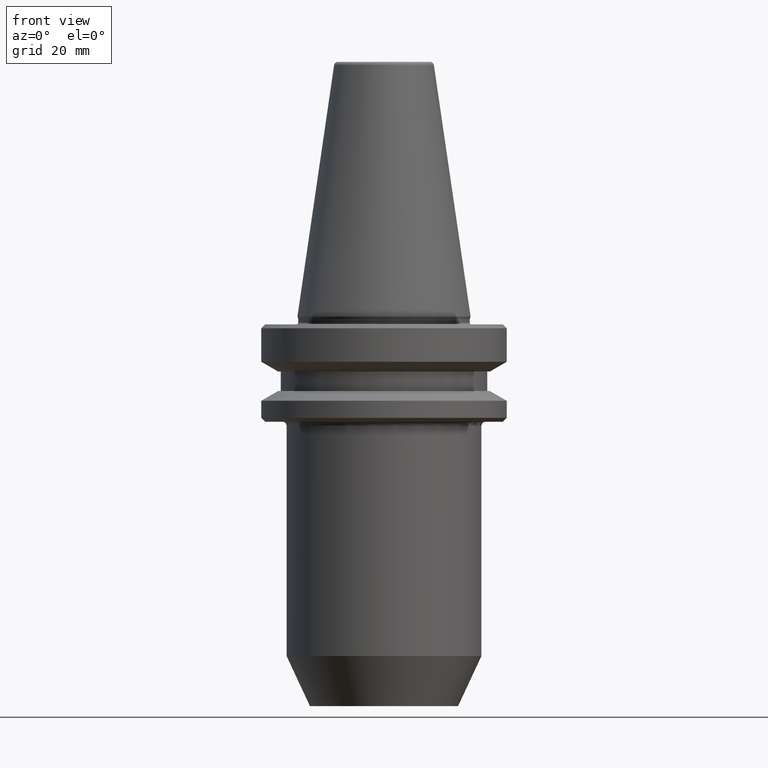
[diagram: clean part render]
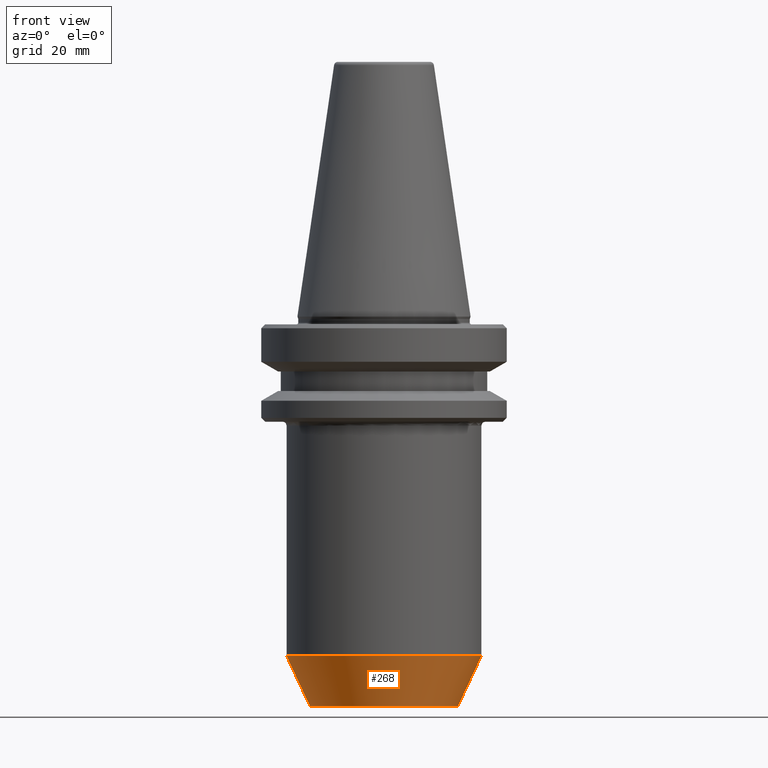
[diagram: same view with one face highlighted and labeled with its STEP entity id]
A machine part, front view. The second image highlights one B-rep face of the part: STEP entity #268.
In plain terms, the highlighted conical surface has half-angle 25 deg.
Its self-contained STEP definition (entity closure, byte-faithful):
#30 = CARTESIAN_POINT ( 'NONE',  ( -19.00000000000000000, 2.326828918379971000E-015, -99.31128678834039600 ) ) ;
#83 = AXIS2_PLACEMENT_3D ( 'NONE', #399, #934, #477 ) ;
#93 = EDGE_CURVE ( 'NONE', #805, #967, #1031, .T. ) ;
#178 = AXIS2_PLACEMENT_3D ( 'NONE', #940, #483, #1007 ) ;
#202 = FACE_OUTER_BOUND ( 'NONE', #475, .T. ) ;
#268 = ADVANCED_FACE ( 'NONE', ( #202 ), #297, .T. ) ;
#297 = CONICAL_SURFACE ( 'NONE', #327, 19.00000000000000000, 0.4363323129985761700 ) ;
#327 = AXIS2_PLACEMENT_3D ( 'NONE', #1018, #998, #795 ) ;
#399 = CARTESIAN_POINT ( 'NONE',  ( 0.0000000000000000000, 0.0000000000000000000, -99.31128678834039600 ) ) ;
#426 = DIRECTION ( 'NONE',  ( -0.4226182617406937800, 5.175581015019589800E-017, 0.9063077870366526000 ) ) ;
#433 = CARTESIAN_POINT ( 'NONE',  ( -19.00000000000000000, 2.694222958124177200E-015, -99.31128678834039600 ) ) ;
#468 = DIRECTION ( 'NONE',  ( 0.4226182617406937800, 0.0000000000000000000, 0.9063077870366526000 ) ) ;
#475 = EDGE_LOOP ( 'NONE', ( #693, #856, #1025, #822 ) ) ;
#477 = DIRECTION ( 'NONE',  ( 1.000000000000000000, 0.0000000000000000000, 0.0000000000000000000 ) ) ;
#483 = DIRECTION ( 'NONE',  ( -0.0000000000000000000, -0.0000000000000000000, 1.000000000000000000 ) ) ;
#490 = VECTOR ( 'NONE', #426, 1000.000000000000000 ) ;
#531 = CARTESIAN_POINT ( 'NONE',  ( 25.00000000000000000, 0.0000000000000000000, -86.44424526528283100 ) ) ;
#554 = EDGE_CURVE ( 'NONE', #606, #1048, #941, .T. ) ;
#587 = VECTOR ( 'NONE', #468, 1000.000000000000000 ) ;
#606 = VERTEX_POINT ( 'NONE', #658 ) ;
#627 = EDGE_CURVE ( 'NONE', #805, #606, #1052, .T. ) ;
#658 = CARTESIAN_POINT ( 'NONE',  ( 19.00000000000000000, 0.0000000000000000000, -99.31128678834039600 ) ) ;
#671 = EDGE_CURVE ( 'NONE', #967, #1048, #774, .T. ) ;
#693 = ORIENTED_EDGE ( 'NONE', *, *, #93, .F. ) ;
#774 = CIRCLE ( 'NONE', #178, 25.00000000000000000 ) ;
#795 = DIRECTION ( 'NONE',  ( 1.000000000000000000, 0.0000000000000000000, 0.0000000000000000000 ) ) ;
#805 = VERTEX_POINT ( 'NONE', #433 ) ;
#822 = ORIENTED_EDGE ( 'NONE', *, *, #671, .F. ) ;
#856 = ORIENTED_EDGE ( 'NONE', *, *, #627, .T. ) ;
#911 = CARTESIAN_POINT ( 'NONE',  ( -25.00000000000000000, 3.061616997868383000E-015, -86.44424526528283100 ) ) ;
#924 = CARTESIAN_POINT ( 'NONE',  ( 19.00000000000000000, 0.0000000000000000000, -99.31128678834039600 ) ) ;
#934 = DIRECTION ( 'NONE',  ( -0.0000000000000000000, -0.0000000000000000000, 1.000000000000000000 ) ) ;
#940 = CARTESIAN_POINT ( 'NONE',  ( 0.0000000000000000000, 0.0000000000000000000, -86.44424526528283100 ) ) ;
#941 = LINE ( 'NONE', #924, #587 ) ;
#967 = VERTEX_POINT ( 'NONE', #911 ) ;
#998 = DIRECTION ( 'NONE',  ( -0.0000000000000000000, -0.0000000000000000000, 1.000000000000000000 ) ) ;
#1007 = DIRECTION ( 'NONE',  ( 1.000000000000000000, 0.0000000000000000000, 0.0000000000000000000 ) ) ;
#1018 = CARTESIAN_POINT ( 'NONE',  ( 0.0000000000000000000, 0.0000000000000000000, -99.31128678834039600 ) ) ;
#1025 = ORIENTED_EDGE ( 'NONE', *, *, #554, .T. ) ;
#1031 = LINE ( 'NONE', #30, #490 ) ;
#1048 = VERTEX_POINT ( 'NONE', #531 ) ;
#1052 = CIRCLE ( 'NONE', #83, 19.00000000000000000 ) ;